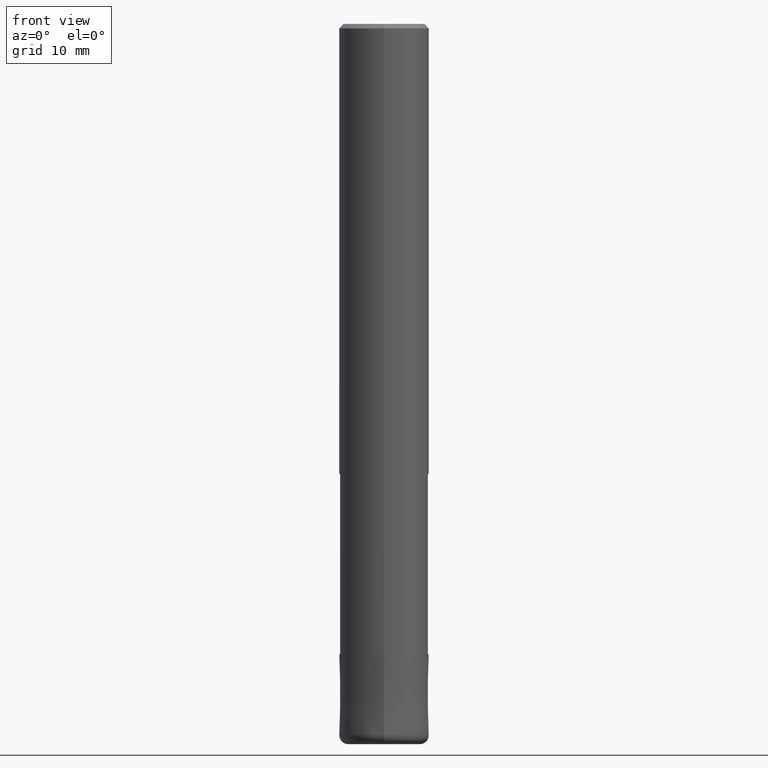
[diagram: clean part render]
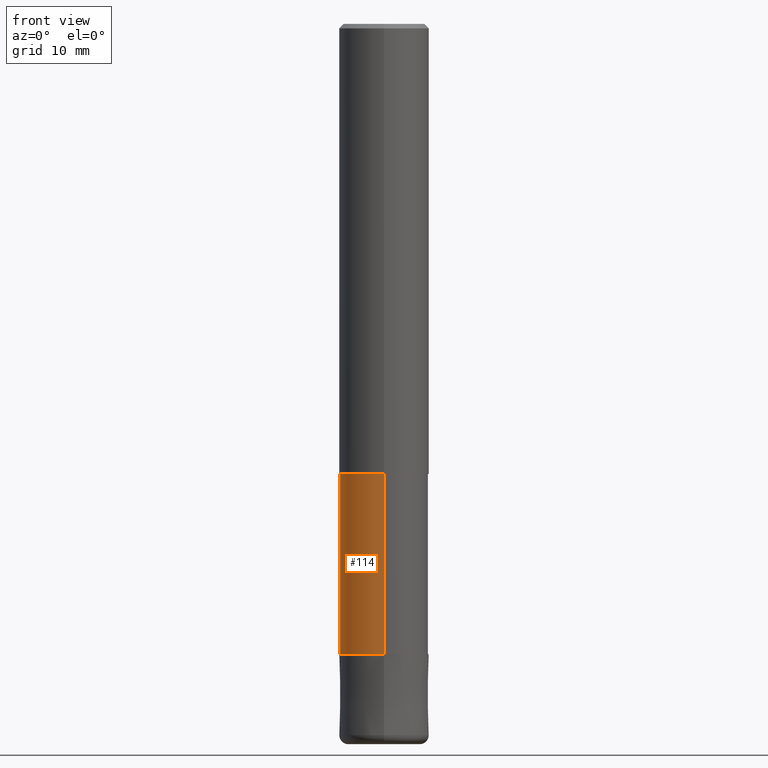
[diagram: same view with one face highlighted and labeled with its STEP entity id]
A machine part, front view. The second image highlights one B-rep face of the part: STEP entity #114.
In plain terms, the highlighted cylindrical surface (partial cylindrical patch) has radius 4.91 mm, axis along (-0, -0, 1).
Its self-contained STEP definition (entity closure, byte-faithful):
#94=EDGE_CURVE('',#202,#180,#231,.T.);
#96=EDGE_CURVE('',#136,#180,#233,.T.);
#98=EDGE_CURVE('',#178,#136,#235,.T.);
#114=ADVANCED_FACE('',(#252),#253,.T.);
#136=VERTEX_POINT('',#276);
#160=EDGE_CURVE('',#202,#178,#307,.T.);
#178=VERTEX_POINT('',#328);
#180=VERTEX_POINT('',#330);
#202=VERTEX_POINT('',#355);
#231=CIRCLE('',#376,4.90995);
#233=LINE('',#379,#380);
#235=CIRCLE('',#383,4.90995);
#252=FACE_OUTER_BOUND('',#405,.T.);
#253=CYLINDRICAL_SURFACE('',#406,4.90995);
#276=CARTESIAN_POINT('',(0.0,4.90995,-50.0));
#307=LINE('',#473,#474);
#328=CARTESIAN_POINT('',(6.01275596695018E-016,-4.90995,-50.0));
#330=CARTESIAN_POINT('',(0.0,4.90995,-70.0));
#355=CARTESIAN_POINT('',(6.01275596695018E-016,-4.90995,-70.0));
#376=AXIS2_PLACEMENT_3D('',#541,#542,#543);
#379=CARTESIAN_POINT('',(-6.01275596695018E-016,4.90995,-60.0));
#380=VECTOR('',#544,1.0);
#383=AXIS2_PLACEMENT_3D('',#545,#546,#547);
#405=EDGE_LOOP('',(#566,#567,#568,#569));
#406=AXIS2_PLACEMENT_3D('',#570,#571,#572);
#473=CARTESIAN_POINT('',(6.01275596695018E-016,-4.90995,-60.0));
#474=VECTOR('',#651,1.0);
#541=CARTESIAN_POINT('',(0.0,0.0,-70.0));
#542=DIRECTION('',(0.0,0.0,-1.0));
#543=DIRECTION('',(0.0,1.0,0.0));
#544=DIRECTION('',(0.0,0.0,-1.0));
#545=CARTESIAN_POINT('',(0.0,0.0,-50.0));
#546=DIRECTION('',(0.0,0.0,-1.0));
#547=DIRECTION('',(0.0,1.0,0.0));
#566=ORIENTED_EDGE('',*,*,#96,.T.);
#567=ORIENTED_EDGE('',*,*,#94,.F.);
#568=ORIENTED_EDGE('',*,*,#160,.T.);
#569=ORIENTED_EDGE('',*,*,#98,.T.);
#570=CARTESIAN_POINT('',(0.0,0.0,-60.0));
#571=DIRECTION('',(-0.0,-0.0,1.0));
#572=DIRECTION('',(0.0,1.0,0.0));
#651=DIRECTION('',(-0.0,-0.0,1.0));